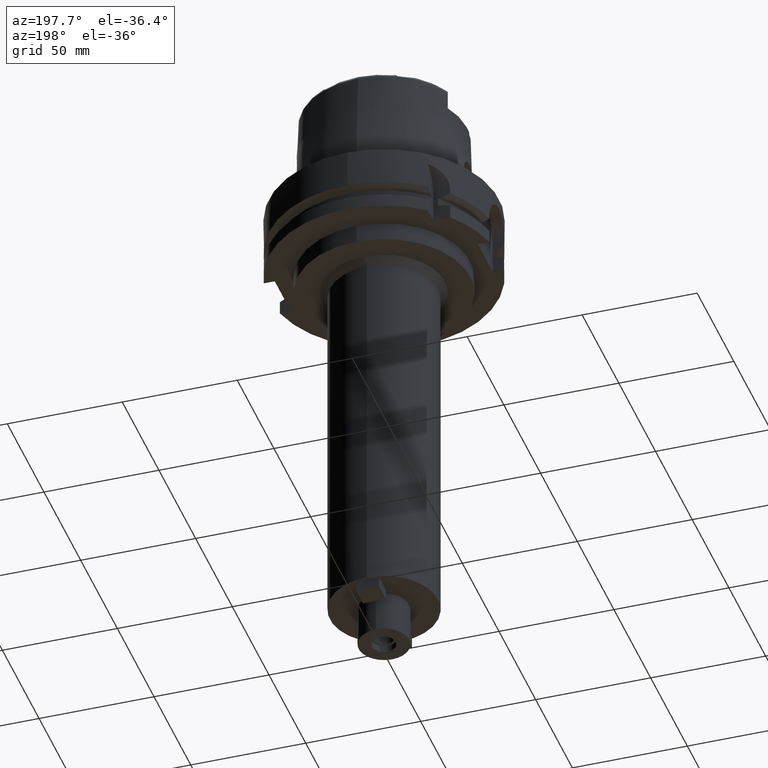
[diagram: clean part render]
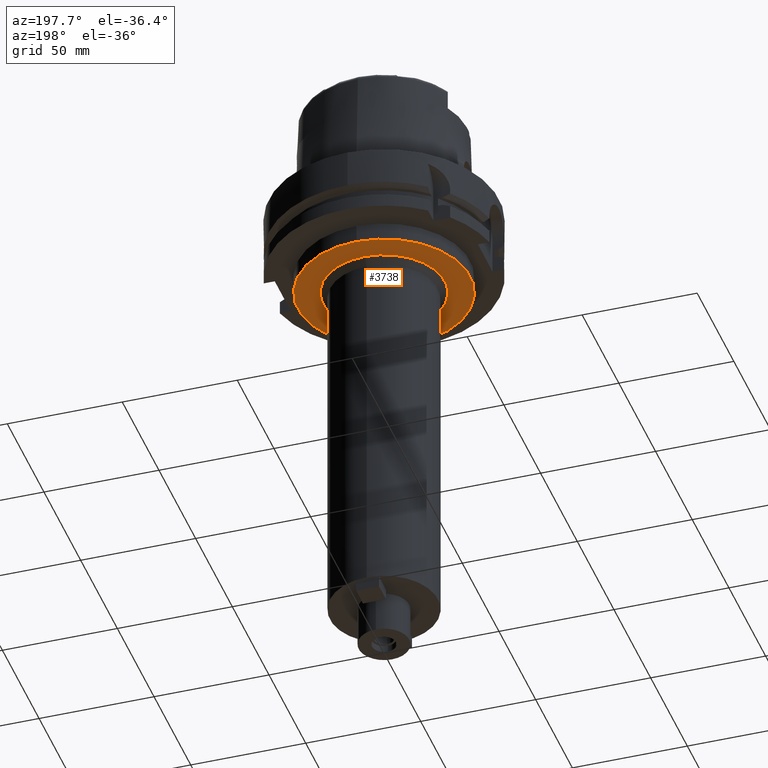
[diagram: same view with one face highlighted and labeled with its STEP entity id]
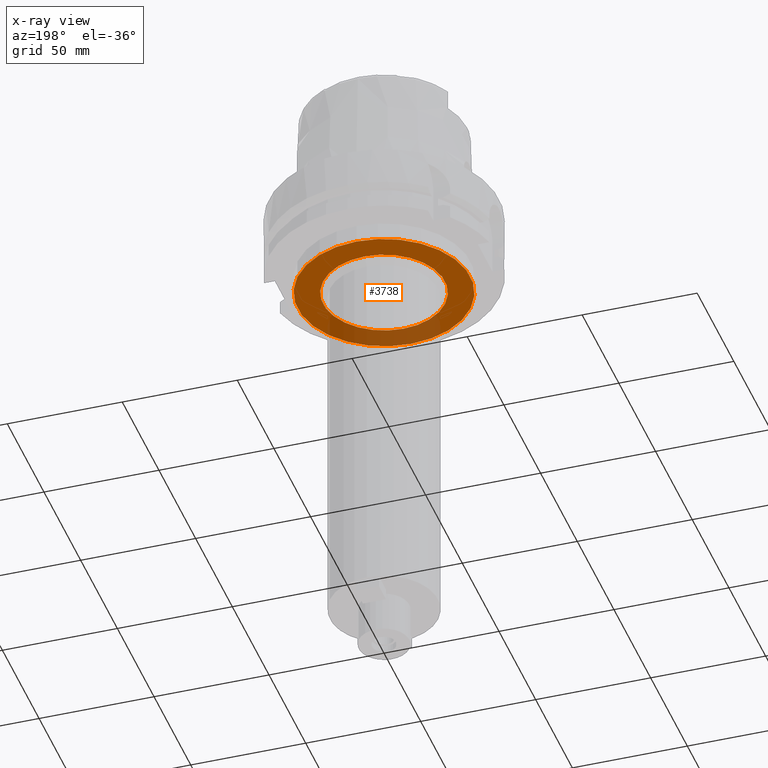
[diagram: x-ray of the same camera — body ghosted, the highlighted face saturated]
A machine part, auxiliary view. The second image highlights one B-rep face of the part: STEP entity #3738.
The next image is the same camera in x-ray: the body ghosted, the highlighted face saturated — about 26% of this face is hidden behind the body in this view.
In plain terms, the highlighted planar face has unit normal (0, 0, 1).
Its self-contained STEP definition (entity closure, byte-faithful):
#1233=CARTESIAN_POINT('',(0.E0,0.E0,-3.7E1));
#1234=DIRECTION('',(0.E0,0.E0,1.E0));
#1235=DIRECTION('',(0.E0,-1.E0,0.E0));
#1236=AXIS2_PLACEMENT_3D('',#1233,#1234,#1235);
#1241=CARTESIAN_POINT('',(0.E0,0.E0,-3.7E1));
#1242=DIRECTION('',(0.E0,0.E0,1.E0));
#1243=DIRECTION('',(0.E0,1.E0,0.E0));
#1244=AXIS2_PLACEMENT_3D('',#1241,#1242,#1243);
#1249=CARTESIAN_POINT('',(0.E0,0.E0,-3.7E1));
#1250=DIRECTION('',(0.E0,0.E0,-1.E0));
#1251=DIRECTION('',(0.E0,-1.E0,0.E0));
#1252=AXIS2_PLACEMENT_3D('',#1249,#1250,#1251);
#1257=CARTESIAN_POINT('',(0.E0,0.E0,-3.7E1));
#1258=DIRECTION('',(0.E0,0.E0,-1.E0));
#1259=DIRECTION('',(0.E0,1.E0,0.E0));
#1260=AXIS2_PLACEMENT_3D('',#1257,#1258,#1259);
#2632=CARTESIAN_POINT('',(0.E0,2.65E1,-3.7E1));
#2633=VERTEX_POINT('',#2632);
#2634=CARTESIAN_POINT('',(0.E0,-2.65E1,-3.7E1));
#2635=VERTEX_POINT('',#2634);
#2636=CARTESIAN_POINT('',(0.E0,-3.75E1,-3.7E1));
#2637=CARTESIAN_POINT('',(0.E0,3.75E1,-3.7E1));
#2638=VERTEX_POINT('',#2636);
#2639=VERTEX_POINT('',#2637);
#3723=CARTESIAN_POINT('',(0.E0,0.E0,-3.7E1));
#3724=DIRECTION('',(0.E0,0.E0,1.E0));
#3725=DIRECTION('',(0.E0,1.E0,0.E0));
#3726=AXIS2_PLACEMENT_3D('',#3723,#3724,#3725);
#3727=PLANE('',#3726);
#3729=ORIENTED_EDGE('',*,*,#3728,.T.);
#3731=ORIENTED_EDGE('',*,*,#3730,.T.);
#3732=EDGE_LOOP('',(#3729,#3731));
#3733=FACE_OUTER_BOUND('',#3732,.F.);
#3734=ORIENTED_EDGE('',*,*,#3702,.T.);
#3735=ORIENTED_EDGE('',*,*,#3718,.T.);
#3736=EDGE_LOOP('',(#3734,#3735));
#3737=FACE_BOUND('',#3736,.F.);
#1237=CIRCLE('',#1236,3.75E1);
#1245=CIRCLE('',#1244,3.75E1);
#1253=CIRCLE('',#1252,2.65E1);
#1261=CIRCLE('',#1260,2.65E1);
#3702=EDGE_CURVE('',#2635,#2633,#1253,.T.);
#3718=EDGE_CURVE('',#2633,#2635,#1261,.T.);
#3728=EDGE_CURVE('',#2638,#2639,#1237,.T.);
#3730=EDGE_CURVE('',#2639,#2638,#1245,.T.);
#3738=ADVANCED_FACE('',(#3733,#3737),#3727,.F.);